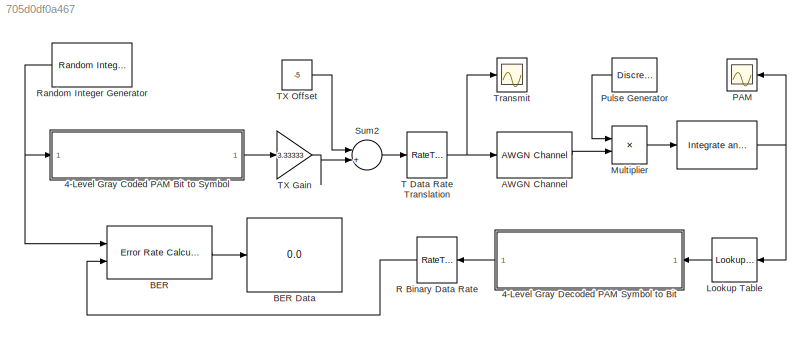
MODEL slx_705d0df0a467
KIND model
BLOCK [Reference]    REF=commfilt2/Integrate
and Dump
  LockScale = off
  Ports = [1, 1]
  SourceBlock = commfilt2/Integrate\nand Dump
  SourceType = Integrate and Dump
  accumFracLength = 30
  accumMode = Inherit via internal rule
  accumWordLength = 32
  nodump = off
  obssamples = 100
  offsetsamples = 0
  outputFracLength = 30
  outputMode = Same as accumulator
  outputWordLength = 32
  overflowMode = off
  roundingMode = Floor
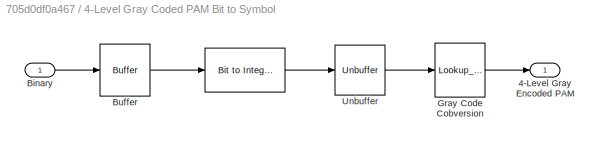
BLOCK [SubSystem] 4-Level Gray Coded PAM Bit to Symbol
  Ports = [1, 1]
  RequestExecContextInheritance = off
BLOCK [Reference] 4-Level Gray Coded PAM Bit to Symbol/   REF=commutil2/Bit to Integer
Converter
  Ports = [1, 1]
  SourceBlock = commutil2/Bit to Integer\nConverter
  SourceType = Bit to Integer Converter
  bitOrder = MSB first
  nbits = 2
  outDtype = Inherit via internal rule
  outDtypeSigned = Inherit via internal rule
  signedOutputValues = Unsigned
BLOCK [Outport] 4-Level Gray Coded PAM Bit to Symbol/4-Level Gray Encoded PAM 
  IconDisplay = Port number
BLOCK [Inport] 4-Level Gray Coded PAM Bit to Symbol/Binary
  IconDisplay = Port number
BLOCK [Buffer] 4-Level Gray Coded PAM Bit to Symbol/Buffer
  N = 2
  TreatMby1Signals = One channel
BLOCK [Lookup_n-D] 4-Level Gray Coded PAM Bit to Symbol/Gray Code Cobversion 
  BreakpointsForDimension1 = [0, 1, 2, 3]
  BreakpointsForDimension3 = [5, 7]
  InternalRulePriority = Speed
  NumberOfTableDimensions = 1
  Ports = [1, 1]
  RndMeth = Simplest
  Table = [0, 1, 3, 2]
BLOCK [Unbuffer] 4-Level Gray Coded PAM Bit to Symbol/Unbuffer
  Ports = [1, 1]
  SampleBasedProcessing = Same as frame based
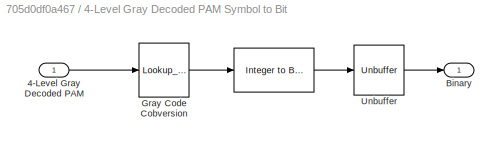
BLOCK [SubSystem] 4-Level Gray Decoded PAM Symbol to Bit
  Ports = [1, 1]
  RequestExecContextInheritance = off
BLOCK [Reference] 4-Level Gray Decoded PAM Symbol to Bit/   REF=commutil2/Integer to Bit
Converter
  Ports = [1, 1]
  SourceBlock = commutil2/Integer to Bit\nConverter
  SourceType = Integer to Bit Converter
  bitOrder = MSB first
  nbits = 2
  outDtype = Inherit via internal rule
  signedInputValues = Unsigned
BLOCK [Inport] 4-Level Gray Decoded PAM Symbol to Bit/4-Level Gray Decoded PAM
  IconDisplay = Port number
BLOCK [Outport] 4-Level Gray Decoded PAM Symbol to Bit/Binary
  IconDisplay = Port number
BLOCK [Lookup_n-D] 4-Level Gray Decoded PAM Symbol to Bit/Gray Code Cobversion 
  BreakpointsForDimension1 = [0, 1, 2, 3]
  BreakpointsForDimension3 = [5, 7]
  InternalRulePriority = Speed
  NumberOfTableDimensions = 1
  Ports = [1, 1]
  RndMeth = Simplest
  Table = [0, 1, 3, 2]
BLOCK [Unbuffer] 4-Level Gray Decoded PAM Symbol to Bit/Unbuffer
  Ports = [1, 1]
  SampleBasedProcessing = Same as frame based
BLOCK [Reference] AWGN Channel  REF=commchan3/AWGN
Channel
  EbNodB = 40
  EsNodB = 20
  InputProcessing = Inherited (this choice will be removed - see release notes)
  Ports = [1, 1]
  Ps = 13.89
  SNRdB = 10
  SourceBlock = commchan3/AWGN\nChannel
  SourceType = AWGN Channel
  Tsym = 2e-3
  UserDataPersistent = on
  bitsPerSym = 2
  noiseMode = Signal to noise ratio  (Eb/No)
  seed = randseed
  variance = 0
BLOCK [Reference] BER  REF=commsink2/Error Rate
Calculation
  N = 8
  PMode = Port
  Ports = [2, 1]
  RsMode2 = off
  SourceBlock = commsink2/Error Rate\nCalculation
  SourceType = Error Rate Calculation
  WsName = ErrorVec
  cp_mode = Entire frame
  maxBits = 1e6
  numErr = 100
  st_delay = 4
  stop = off
  subframe = []
BLOCK [Display] BER Data
  Decimation = 1
  Format = long
  Ports = [1]
BLOCK [Lookup_n-D] Lookup Table
  BreakpointsForDimension1 = [-2500, -833.333, 833.333, 2500]
  BreakpointsForDimension3 = [5, 7]
  InternalRulePriority = Speed
  InterpMethod = Nearest
  NumberOfTableDimensions = 1
  Ports = [1, 1]
  RndMeth = Simplest
  Table = [0, 1, 2, 3]
BLOCK [Product] Multiplier
  InputSameDT = off
  OutDataTypeStr = Inherit: Inherit via internal rule
  Ports = [2, 1]
  SaturateOnIntegerOverflow = off
BLOCK [Scope] PAM
  DataFormat = StructureWithTime
  Floating = off
  LimitDataPoints = off
  NumInputPorts = 1
  Ports = [1]
  SampleTime = 0
  SaveName = ScopeData1
  ShowLegends = off
  TimeRange = 0.05
  YMax = 8
  YMin = -8
BLOCK [DiscretePulseGenerator] Pulse Generator
  Amplitude = 5
  Period = 100
  Ports = [0, 1]
  PulseWidth = 99
  SampleTime = 2e-5
BLOCK [RateTransition] R Binary Data Rate  
  OutPortSampleTime = 1e-3
BLOCK [Reference] Random Integer Generator  REF=commrandsrc2/Random Integer
Generator
  Ports = [0, 1]
  SourceBlock = commrandsrc2/Random Integer\nGenerator
  SourceType = Random Integer Generator
  Ts = 1e-3
  frameBased = off
  mul = 2
  orient = off
  outDataType = double
  sampPerFrame = 1
  seed = randseed
BLOCK [Sum] Sum2
  IconShape = round
  InputSameDT = off
  Inputs = |++
  OutDataTypeStr = Inherit: Inherit via internal rule
  Ports = [2, 1]
  SaturateOnIntegerOverflow = off
BLOCK [RateTransition] T Data Rate Translation
  OutPortSampleTime = 2e-5
BLOCK [Gain] TX Gain
  Gain = 3.33333
  OutDataTypeStr = Inherit: Inherit via internal rule
  ParamDataTypeStr = Inherit: Inherit via internal rule
  SaturateOnIntegerOverflow = off
BLOCK [Constant] TX Offset
  Value = -5
BLOCK [Scope] Transmit
  DataFormat = StructureWithTime
  Floating = off
  LimitDataPoints = off
  NumInputPorts = 1
  Ports = [1]
  SampleTime = 0
  ShowLegends = off
  TimeRange = 0.05
  YMax = 8
  YMin = -8
NET  :1 -> Lookup Table:1, PAM:1
LINE 4-Level Gray Coded PAM Bit to Symbol/ :1 -> 4-Level Gray Coded PAM Bit to Symbol/Unbuffer:1
LINE 4-Level Gray Coded PAM Bit to Symbol/Binary:1 -> 4-Level Gray Coded PAM Bit to Symbol/Buffer:1
LINE 4-Level Gray Coded PAM Bit to Symbol/Buffer:1 -> 4-Level Gray Coded PAM Bit to Symbol/ :1
LINE 4-Level Gray Coded PAM Bit to Symbol/Gray Code Cobversion :1 -> 4-Level Gray Coded PAM Bit to Symbol/4-Level Gray Encoded PAM :1
LINE 4-Level Gray Coded PAM Bit to Symbol/Unbuffer:1 -> 4-Level Gray Coded PAM Bit to Symbol/Gray Code Cobversion :1
LINE 4-Level Gray Coded PAM Bit to Symbol:1 -> TX Gain:1
LINE 4-Level Gray Decoded PAM Symbol to Bit/ :1 -> 4-Level Gray Decoded PAM Symbol to Bit/Unbuffer:1
LINE 4-Level Gray Decoded PAM Symbol to Bit/4-Level Gray Decoded PAM:1 -> 4-Level Gray Decoded PAM Symbol to Bit/Gray Code Cobversion :1
LINE 4-Level Gray Decoded PAM Symbol to Bit/Gray Code Cobversion :1 -> 4-Level Gray Decoded PAM Symbol to Bit/ :1
LINE 4-Level Gray Decoded PAM Symbol to Bit/Unbuffer:1 -> 4-Level Gray Decoded PAM Symbol to Bit/Binary:1
LINE 4-Level Gray Decoded PAM Symbol to Bit:1 -> R Binary Data Rate  :1
LINE AWGN Channel:1 -> Multiplier:2
LINE BER:1 -> BER Data:1
LINE Lookup Table:1 -> 4-Level Gray Decoded PAM Symbol to Bit:1
LINE Multiplier:1 ->  :1
LINE Pulse Generator:1 -> Multiplier:1
LINE R Binary Data Rate  :1 -> BER:2
NET Random Integer Generator:1 -> 4-Level Gray Coded PAM Bit to Symbol:1, BER:1
LINE Sum2:1 -> T Data Rate Translation:1
NET T Data Rate Translation:1 -> AWGN Channel:1, Transmit:1
LINE TX Gain:1 -> Sum2:2
LINE TX Offset:1 -> Sum2:1
note: NET lines group one-source signal fan-out (src -> all destinations, sorted); 1:1 wires keep LINE
